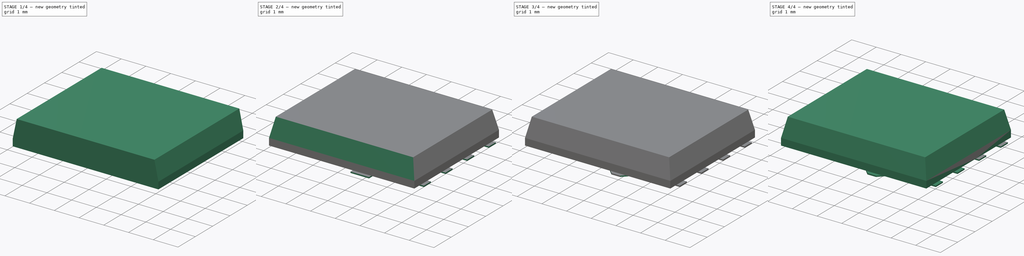
[diagram: build sequence overview — one tinted view per stage of 4, left to right]
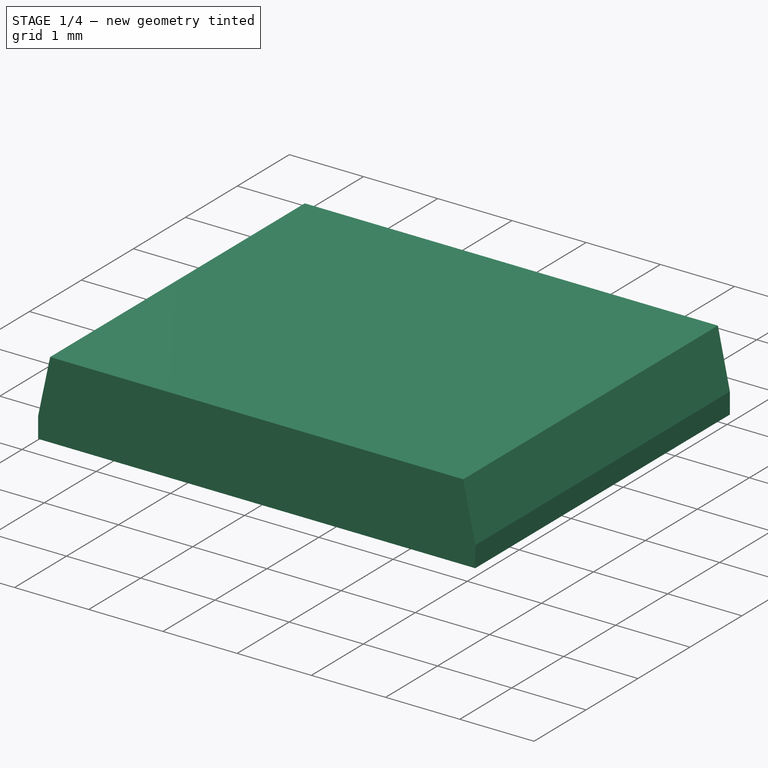
[diagram: stage 1 of 4 — iso view after this stage's code; geometry added in this stage tinted green]
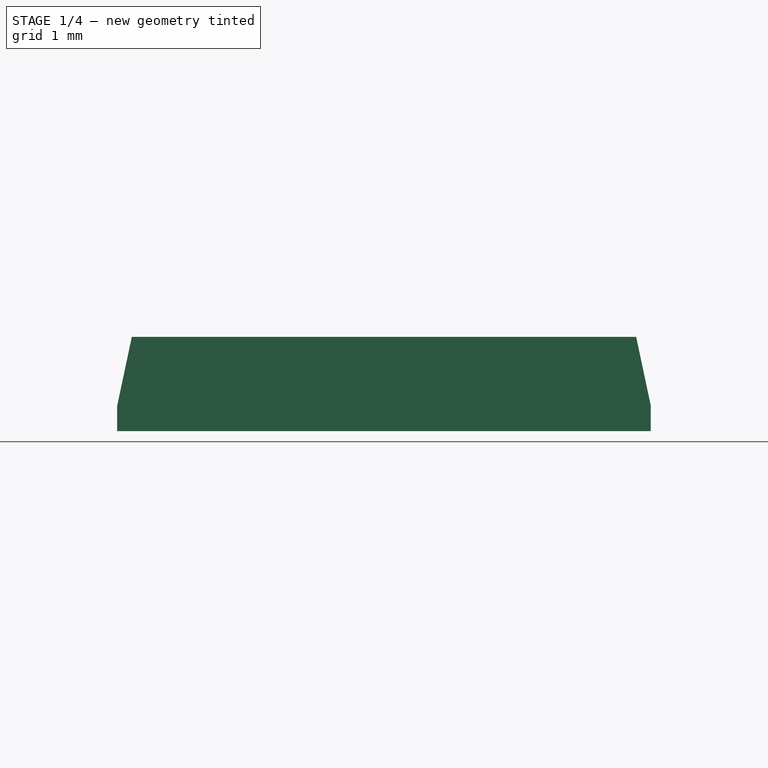
[diagram: stage 1 of 4 — front view after this stage's code; geometry added in this stage tinted green]
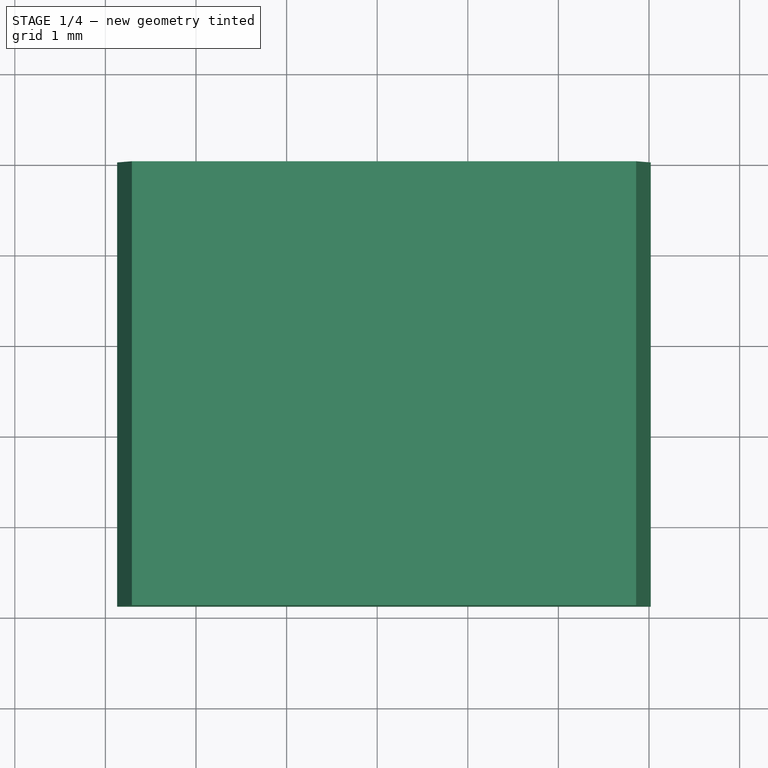
[diagram: stage 1 of 4 — top view after this stage's code; geometry added in this stage tinted green]
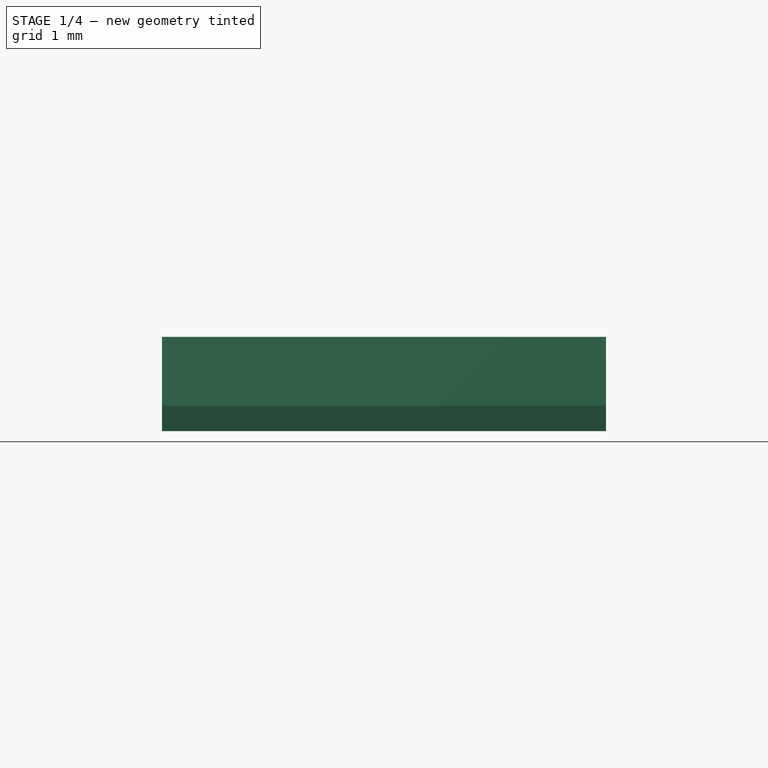
[diagram: stage 1 of 4 — right view after this stage's code; geometry added in this stage tinted green]
FCSTD DOCUMENT  (FreeCAD 0.15R4671 (Git))
Label: Vishay_PowerPAK_SO-8
License: All rights reserved
LicenseURL: http://en.wikipedia.org/wiki/All_rights_reserved
objects: Sketcher::SketchObject×4, PartDesign::Chamfer×4, PartDesign::Pad×2, PartDesign::Pocket×2, Part::MultiFuse×1
note: 17 computed .brp shape members not serialized (recipe doc carries the construction recipe); baked Part::Feature solids carry a one-line shape summary decoded from their .brp

FEATURE [Sketcher::SketchObject] Sketch001
  Placement = pos=(0,0,0.05) rot=(0,0,1;0rad)
  sketch-geometry (4):
    g0: LineSegment StartX=0.13 StartY=5.025 StartZ=0 EndX=6.02 EndY=5.025 EndZ=0
    g1: LineSegment StartX=6.02 StartY=5.025 StartZ=0 EndX=6.02 EndY=0.125 EndZ=0
    g2: LineSegment StartX=6.02 StartY=0.125 StartZ=0 EndX=0.13 EndY=0.125 EndZ=0
    g3: LineSegment StartX=0.13 StartY=0.125 StartZ=0 EndX=0.13 EndY=5.025 EndZ=0
  constraints (12):
    c: Coincident(g0,g1)
    c: Coincident(g1,g2)
    c: Coincident(g2,g3)
    c: Coincident(g3,g0)
    c: Horizontal(g0)
    c: Horizontal(g2)
    c: Vertical(g1)
    c: Vertical(g3)
    c: DistanceY(g-1,g1) = 0.125
    c: DistanceX(g-2,g2) = 0.13
    c: Distance(g0) = 5.89
    c: Distance(g3) = 4.9
FEATURE [PartDesign::Pad] Pad001  label="Body"
  Length = 1.04
  Length2 = 100
  Placement = pos=(0,0,0.05) rot=(0,0,1;0rad)
  Sketch = -> Sketch001
  Type = 0
FEATURE [Sketcher::SketchObject] Sketch002
  Placement = pos=(0,0.125,0.05) rot=(1,0,0;1.5708rad)
  Support = -> Pad001 [Face3]
  sketch-geometry (6):
    g0: LineSegment StartX=0.13 StartY=0.28 StartZ=0 EndX=0.13 EndY=1.04 EndZ=0
    g1: LineSegment StartX=0.13 StartY=1.04 StartZ=0 EndX=0.291543 EndY=1.04 EndZ=0
    g2: LineSegment StartX=0.291543 StartY=1.04 StartZ=0 EndX=0.13 EndY=0.28 EndZ=0
    g3: LineSegment StartX=5.85846 StartY=1.04 StartZ=0 EndX=6.02 EndY=1.04 EndZ=0
    g4: LineSegment StartX=6.02 StartY=1.04 StartZ=0 EndX=6.02 EndY=0.28 EndZ=0
    g5: LineSegment StartX=6.02 StartY=0.28 StartZ=0 EndX=5.85846 EndY=1.04 EndZ=0
  constraints (18):
    c: Vertical(g0)
    c: Coincident(g0,g1)
    c: Horizontal(g1)
    c: Coincident(g1,g2)
    c: Coincident(g2,g0)
    c: Distance(g0) = 0.76
    c: Angle(g2,g0) = 0.20944
    c: DistanceY(g-1,g0) = 0.28
    c: DistanceX(g-2,g0) = 0.13
    c: Horizontal(g3)
    c: Coincident(g3,g4)
    c: Vertical(g4)
    c: Coincident(g4,g5)
    c: Coincident(g5,g3)
    c: Equal(g4,g0)
    c: Angle(g4,g5) = 0.20944
    c: DistanceY(g-1,g4) = 0.28
    c: Distance(g3,g0) = 5.89
FEATURE [PartDesign::Pocket] Pocket
  Length = 6
  Placement = pos=(0,0,0.05) rot=(0,0,1;0rad)
  Sketch = -> Sketch002
  Type = 0
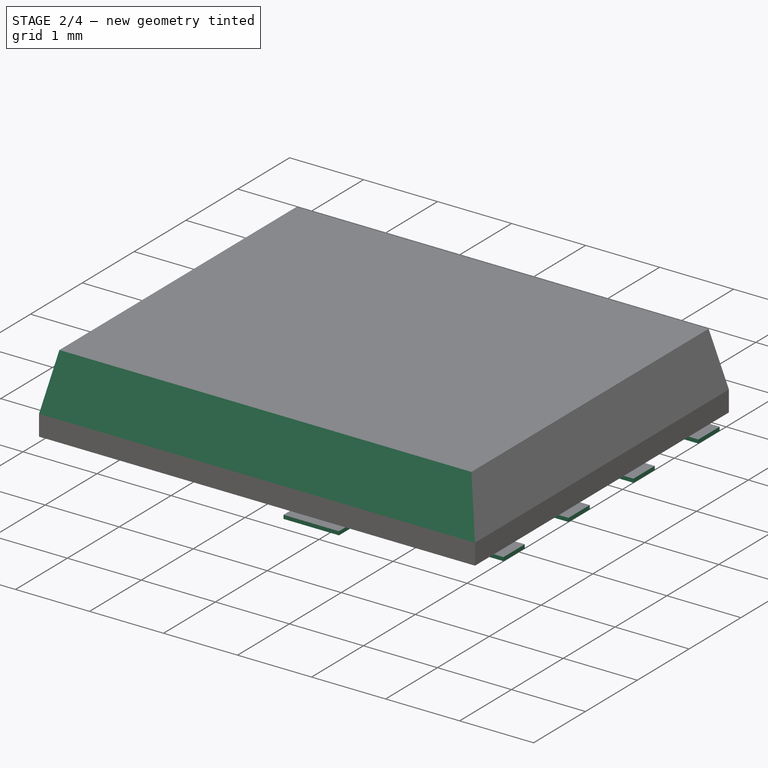
[diagram: stage 2 of 4 — iso view after this stage's code; geometry added in this stage tinted green]
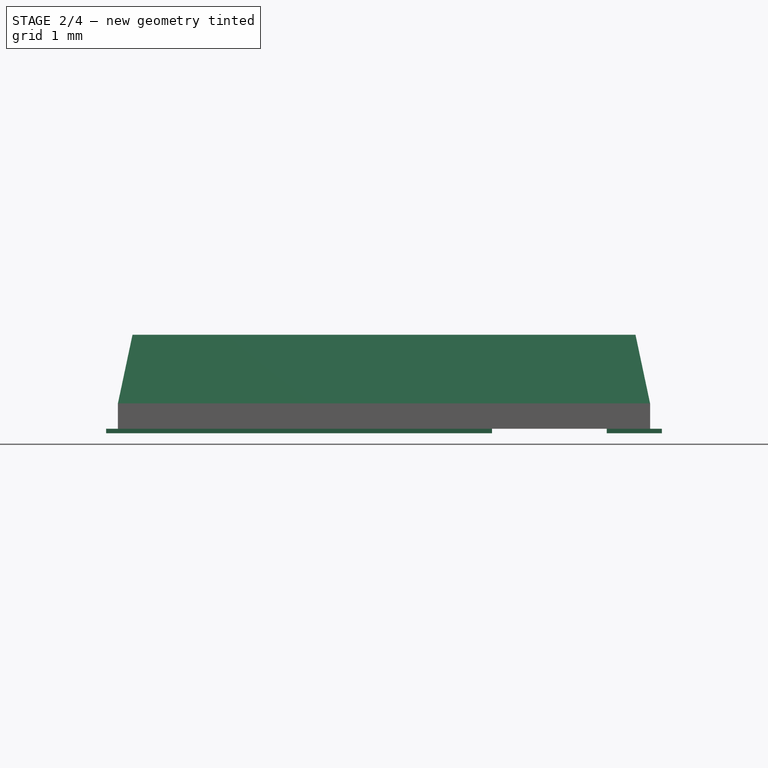
[diagram: stage 2 of 4 — front view after this stage's code; geometry added in this stage tinted green]
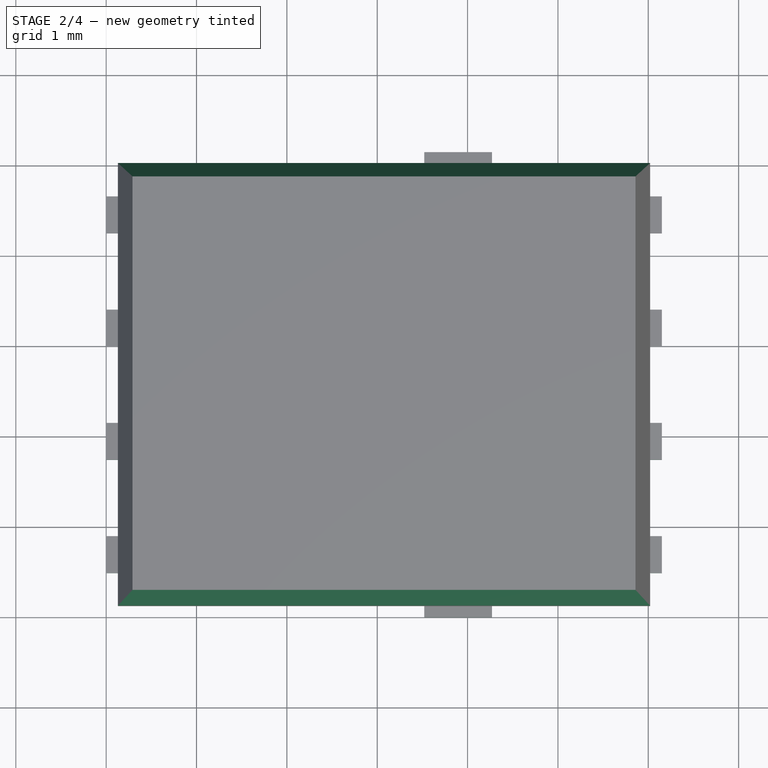
[diagram: stage 2 of 4 — top view after this stage's code; geometry added in this stage tinted green]
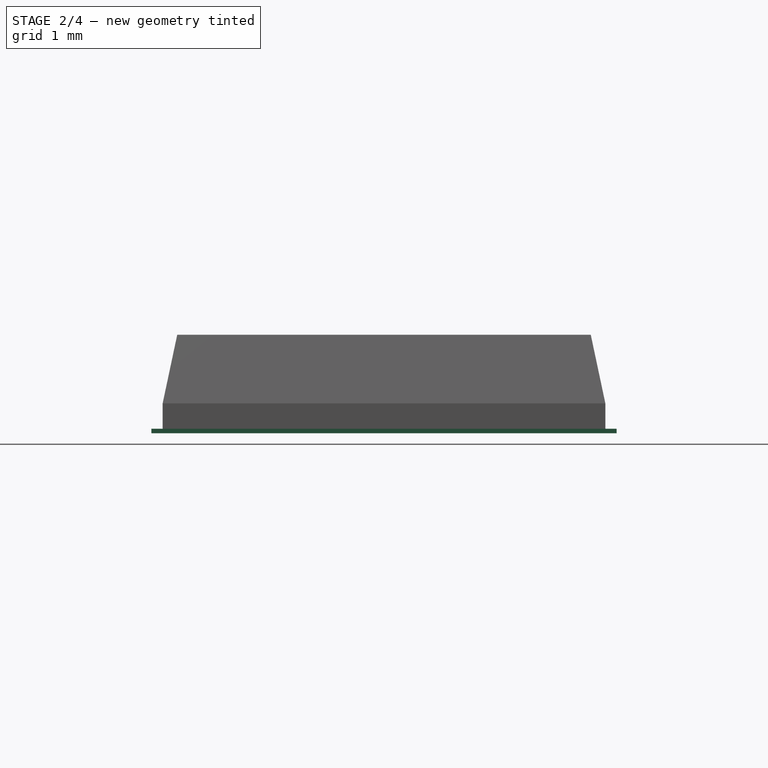
[diagram: stage 2 of 4 — right view after this stage's code; geometry added in this stage tinted green]
FEATURE [Sketcher::SketchObject] Sketch
  sketch-geometry (40):
    g0: LineSegment StartX=3.52 StartY=0 StartZ=0 EndX=3.52 EndY=0.49 EndZ=0
    g1: LineSegment StartX=3.52 StartY=0.49 StartZ=0 EndX=0 EndY=0.49 EndZ=0
    g2: LineSegment StartX=0 StartY=0.49 StartZ=0 EndX=0 EndY=0.9 EndZ=0
    g3: LineSegment StartX=0 StartY=0.9 StartZ=0 EndX=0.61 EndY=0.9 EndZ=0
    g4: LineSegment StartX=0.61 StartY=0.9 StartZ=0 EndX=0.61 EndY=1.74333 EndZ=0
    g5: LineSegment StartX=0.61 StartY=1.74333 StartZ=0 EndX=0 EndY=1.74333 EndZ=0
    g6: LineSegment StartX=0 StartY=1.74333 StartZ=0 EndX=0 EndY=2.15333 EndZ=0
    g7: LineSegment StartX=0 StartY=2.15333 StartZ=0 EndX=0.61 EndY=2.15333 EndZ=0
    g8: LineSegment StartX=0.61 StartY=2.15333 StartZ=0 EndX=0.61 EndY=2.99667 EndZ=0
    g9: LineSegment StartX=0.61 StartY=2.99667 StartZ=0 EndX=0 EndY=2.99667 EndZ=0
    g10: LineSegment StartX=0 StartY=2.99667 StartZ=0 EndX=0 EndY=3.40667 EndZ=0
    g11: LineSegment StartX=0 StartY=3.40667 StartZ=0 EndX=0.61 EndY=3.40667 EndZ=0
    g12: LineSegment StartX=0.61 StartY=3.40667 StartZ=0 EndX=0.61 EndY=4.25 EndZ=0
    g13: LineSegment StartX=0.61 StartY=4.25 StartZ=0 EndX=0 EndY=4.25 EndZ=0
    g14: LineSegment StartX=0 StartY=4.25 StartZ=0 EndX=0 EndY=4.66 EndZ=0
    g15: LineSegment StartX=0 StartY=4.66 StartZ=0 EndX=3.52 EndY=4.66 EndZ=0
    g16: LineSegment StartX=3.52 StartY=4.66 StartZ=0 EndX=3.52 EndY=5.15 EndZ=0
    g17: LineSegment StartX=3.52 StartY=5.15 StartZ=0 EndX=4.27 EndY=5.15 EndZ=0
    g18: LineSegment StartX=4.27 StartY=5.15 StartZ=0 EndX=4.27 EndY=0 EndZ=0
    g19: LineSegment StartX=4.27 StartY=0 StartZ=0 EndX=3.52 EndY=0 EndZ=0
    g20: LineSegment StartX=5.54 StartY=4.66 StartZ=0 EndX=6.15 EndY=4.66 EndZ=0
    g21: LineSegment StartX=6.15 StartY=4.66 StartZ=0 EndX=6.15 EndY=4.25 EndZ=0
    g22: LineSegment StartX=6.15 StartY=4.25 StartZ=0 EndX=5.54 EndY=4.25 EndZ=0
    g23: LineSegment StartX=5.54 StartY=4.25 StartZ=0 EndX=5.54 EndY=4.66 EndZ=0
    g24: LineSegment StartX=5.54 StartY=3.40667 StartZ=0 EndX=6.15 EndY=3.40667 EndZ=0
    g25: LineSegment StartX=6.15 StartY=3.40667 StartZ=0 EndX=6.15 EndY=2.99667 EndZ=0
    g26: LineSegment StartX=6.15 StartY=2.99667 StartZ=0 EndX=5.54 EndY=2.99667 EndZ=0
    g27: LineSegment StartX=5.54 StartY=2.99667 StartZ=0 EndX=5.54 EndY=3.40667 EndZ=0
    g28: LineSegment StartX=5.54 StartY=2.15333 StartZ=0 EndX=6.15 EndY=2.15333 EndZ=0
    g29: LineSegment StartX=6.15 StartY=2.15333 StartZ=0 EndX=6.15 EndY=1.74333 EndZ=0
    g30: LineSegment StartX=6.15 StartY=1.74333 StartZ=0 EndX=5.54 EndY=1.74333 EndZ=0
    g31: LineSegment StartX=5.54 StartY=1.74333 StartZ=0 EndX=5.54 EndY=2.15333 EndZ=0
    g32: LineSegment StartX=5.54 StartY=0.9 StartZ=0 EndX=6.15 EndY=0.9 EndZ=0
    g33: LineSegment StartX=6.15 StartY=0.9 StartZ=0 EndX=6.15 EndY=0.49 EndZ=0
    g34: LineSegment StartX=6.15 StartY=0.49 StartZ=0 EndX=5.54 EndY=0.49 EndZ=0
    g35: LineSegment StartX=5.54 StartY=0.49 StartZ=0 EndX=5.54 EndY=0.9 EndZ=0
    g36: LineSegment [constr] StartX=6.15 StartY=1.74333 StartZ=0 EndX=6.15 EndY=0.9 EndZ=0
    g37: LineSegment [constr] StartX=6.15 StartY=2.99667 StartZ=0 EndX=6.15 EndY=2.15333 EndZ=0
    g38: LineSegment [constr] StartX=6.15 StartY=4.25 StartZ=0 EndX=6.15 EndY=3.40667 EndZ=0
    g39: LineSegment [constr] StartX=6.15 StartY=0.49 StartZ=0 EndX=6.15 EndY=0 EndZ=0
  constraints (121):
    c: PointOnObject(g0,g-1)
    c: Vertical(g0)
    c: Coincident(g0,g1)
    c: PointOnObject(g1,g-2)
    c: Horizontal(g1)
    c: Coincident(g1,g2)
    c: Coincident(g2,g3)
    c: Horizontal(g3)
    c: Coincident(g3,g4)
    c: Vertical(g4)
    c: Coincident(g4,g5)
    c: PointOnObject(g5,g-2)
    c: Horizontal(g5)
    c: Coincident(g5,g6)
    c: Coincident(g6,g7)
    c: Horizontal(g7)
    c: Coincident(g7,g8)
    c: Vertical(g8)
    c: Coincident(g8,g9)
    c: PointOnObject(g9,g-2)
    c: Horizontal(g9)
    c: Coincident(g9,g10)
    c: PointOnObject(g10,g-2)
    c: Coincident(g10,g11)
    c: Horizontal(g11)
    c: Coincident(g11,g12)
    c: Vertical(g12)
    c: Coincident(g12,g13)
    c: PointOnObject(g13,g-2)
    c: Horizontal(g13)
    c: Coincident(g13,g14)
    c: PointOnObject(g14,g-2)
    c: Coincident(g14,g15)
    c: Horizontal(g15)
    c: Coincident(g15,g16)
    c: Vertical(g16)
    c: Coincident(g16,g17)
    c: Horizontal(g17)
    c: Coincident(g17,g18)
    c: PointOnObject(g18,g-1)
    c: Coincident(g18,g19)
    c: Coincident(g19,g0)
    c: Equal(g14,g10)
    c: Equal(g10,g6)
    c: Equal(g6,g2)
    c: Distance(g2) = 0.41
    c: Equal(g13,g11)
    c: Equal(g11,g9)
    c: Equal(g9,g7)
    c: Equal(g7,g5)
    c: Equal(g5,g3)
    c: Distance(g13) = 0.61
    c: Equal(g12,g8)
    c: Equal(g8,g4)
    c: Equal(g17,g19)
    c: Distance(g19) = 0.75
    c: Equal(g0,g16)
    c: Distance(g0) = 0.49
    c: Equal(g15,g1)
    c: Distance(g15) = 3.52
    c: Coincident(g20,g21)
    c: Coincident(g21,g22)
    c: Coincident(g22,g23)
    c: Coincident(g23,g20)
    c: Horizontal(g20)
    c: Horizontal(g22)
    c: Vertical(g21)
    c: Vertical(g23)
    c: Coincident(g24,g25)
    c: Coincident(g25,g26)
    c: Coincident(g26,g27)
    c: Coincident(g27,g24)
    c: Horizontal(g24)
    c: Horizontal(g26)
    c: Vertical(g25)
    c: Vertical(g27)
    c: Coincident(g28,g29)
    c: Coincident(g29,g30)
    c: Coincident(g30,g31)
    c: Coincident(g31,g28)
    c: Horizontal(g28)
    c: Horizontal(g30)
    c: Vertical(g29)
    c: Vertical(g31)
    c: Coincident(g32,g33)
    c: Coincident(g33,g34)
    c: Coincident(g34,g35)
    c: Coincident(g35,g32)
    c: Horizontal(g32)
    c: Horizontal(g34)
    c: Vertical(g33)
    c: Vertical(g35)
    c: Distance(g33) = 0.41
    c: Distance(g20,g18) = 1.27
    c: Distance(g26,g18) = 1.27
    c: Distance(g30,g18) = 1.27
    c: Distance(g34,g18) = 1.27
    c: Coincident(g36,g29)
    c: Coincident(g36,g32)
    c: Vertical(g36)
    c: Equal(g36,g4)
    c: Coincident(g37,g25)
    c: Coincident(g37,g28)
    c: Vertical(g37)
    c: Equal(g37,g8)
    c: Coincident(g38,g21)
    c: Coincident(g38,g24)
    c: Vertical(g38)
    c: Equal(g38,g8)
    c: Equal(g33,g29)
    c: Equal(g29,g25)
    c: Equal(g25,g21)
    c: Equal(g34,g30)
    c: Equal(g30,g26)
    c: Equal(g26,g22)
    c: Distance(g20) = 0.61
    c: Distance(g18) = 5.15
    c: Coincident(g39,g33)
    c: PointOnObject(g39,g-1)
    c: Vertical(g39)
    c: Equal(g39,g0)
FEATURE [PartDesign::Pad] Pad
  Length = 0.05
  Length2 = 100
  Sketch = -> Sketch
  Type = 0
FEATURE [Sketcher::SketchObject] Sketch003
  Placement = pos=(6.02,0,0.05) rot=(0.57735,0.57735,0.57735;2.0944rad)
  Support = -> Pocket [Face3]
  sketch-geometry (6):
    g0: LineSegment StartX=0.125 StartY=0.28 StartZ=0 EndX=0.125 EndY=1.04 EndZ=0
    g1: LineSegment StartX=0.125 StartY=1.04 StartZ=0 EndX=0.286543 EndY=1.04 EndZ=0
    g2: LineSegment StartX=0.286543 StartY=1.04 StartZ=0 EndX=0.125 EndY=0.28 EndZ=0
    g3: LineSegment StartX=4.86346 StartY=1.04 StartZ=0 EndX=5.025 EndY=1.04 EndZ=0
    g4: LineSegment StartX=5.025 StartY=1.04 StartZ=0 EndX=5.025 EndY=0.28 EndZ=0
    g5: LineSegment StartX=5.025 StartY=0.28 StartZ=0 EndX=4.86346 EndY=1.04 EndZ=0
  constraints (18):
    c: Vertical(g0)
    c: Coincident(g0,g1)
    c: Horizontal(g1)
    c: Coincident(g1,g2)
    c: Coincident(g2,g0)
    c: Distance(g0) = 0.76
    c: Angle(g2,g0) = 0.20944
    c: DistanceY(g-1,g0) = 0.28
    c: DistanceX(g-2,g0) = 0.125
    c: Horizontal(g3)
    c: Coincident(g3,g4)
    c: Vertical(g4)
    c: Coincident(g4,g5)
    c: Coincident(g5,g3)
    c: Angle(g4,g5) = 0.20944
    c: Equal(g4,g0)
    c: DistanceY(g-1,g4) = 0.28
    c: Distance(g3,g0) = 4.9
FEATURE [PartDesign::Pocket] Pocket001
  Length = 6
  Placement = pos=(0,0,0.05) rot=(0,0,1;0rad)
  Sketch = -> Sketch003
  Type = 0
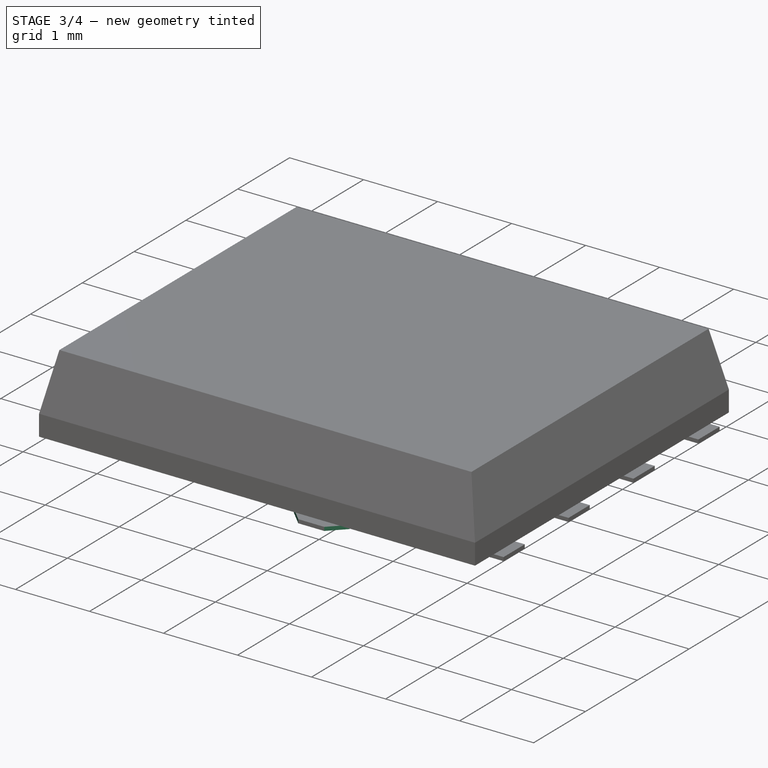
[diagram: stage 3 of 4 — iso view after this stage's code; geometry added in this stage tinted green]
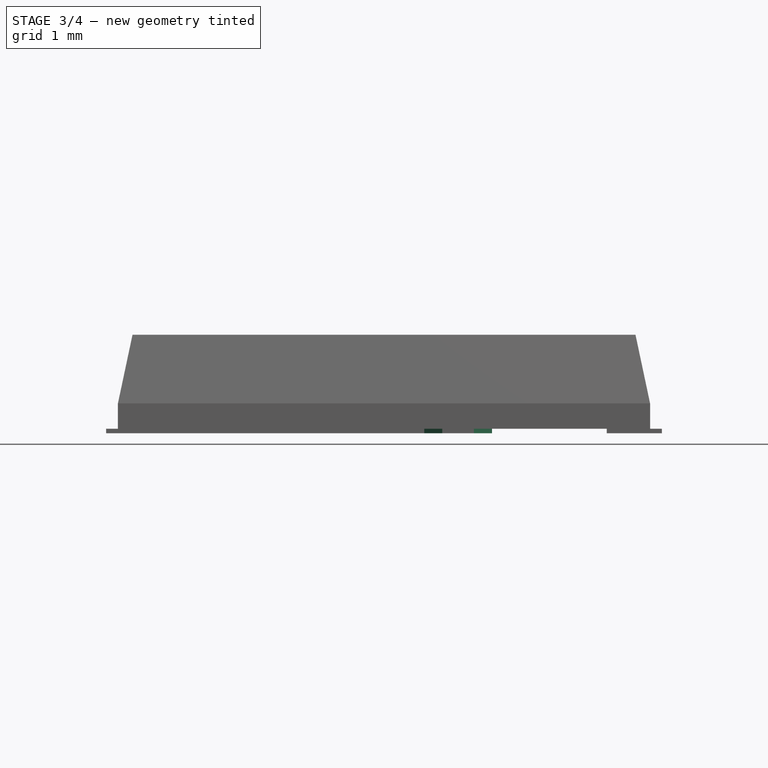
[diagram: stage 3 of 4 — front view after this stage's code; geometry added in this stage tinted green]
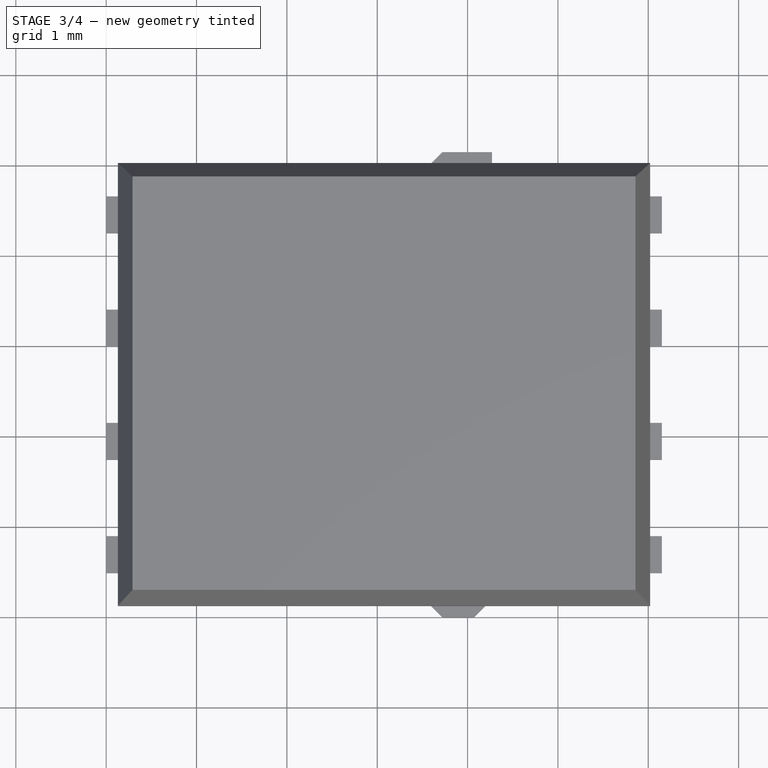
[diagram: stage 3 of 4 — top view after this stage's code; geometry added in this stage tinted green]
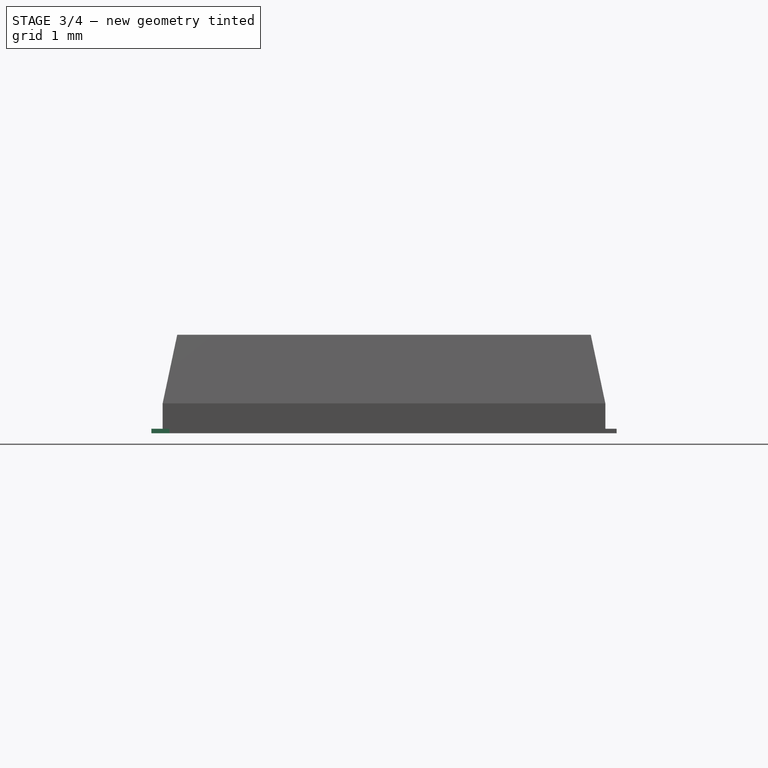
[diagram: stage 3 of 4 — right view after this stage's code; geometry added in this stage tinted green]
FEATURE [PartDesign::Chamfer] Chamfer004
  Base = -> Pad [Edge56]
  Size = 0.2
FEATURE [PartDesign::Chamfer] Chamfer005
  Base = -> Chamfer004 [Edge47]
  Size = 0.2
FEATURE [PartDesign::Chamfer] Chamfer006
  Base = -> Chamfer005 [Edge36]
  Size = 0.2
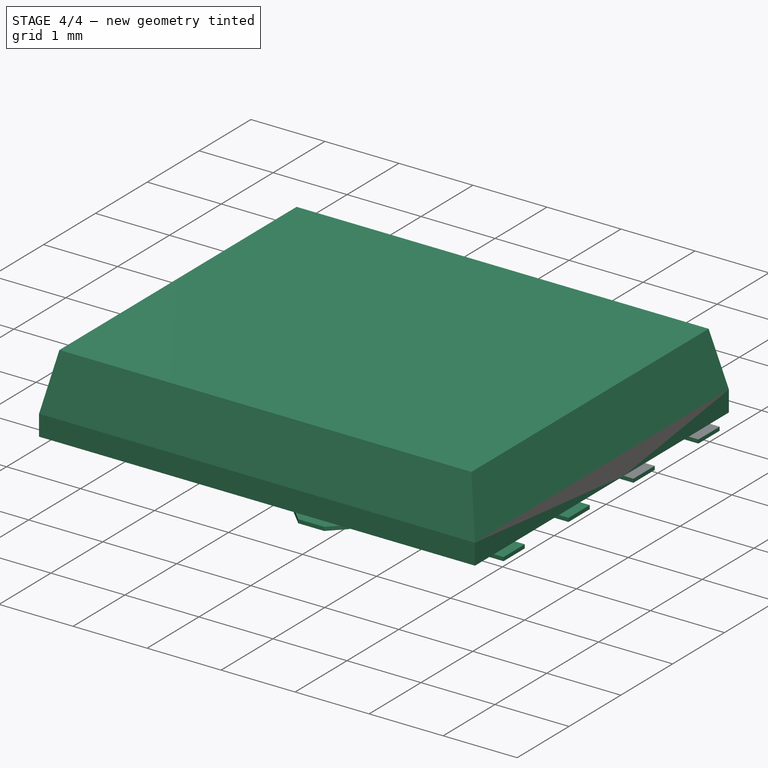
[diagram: stage 4 of 4 — iso view after this stage's code; geometry added in this stage tinted green]
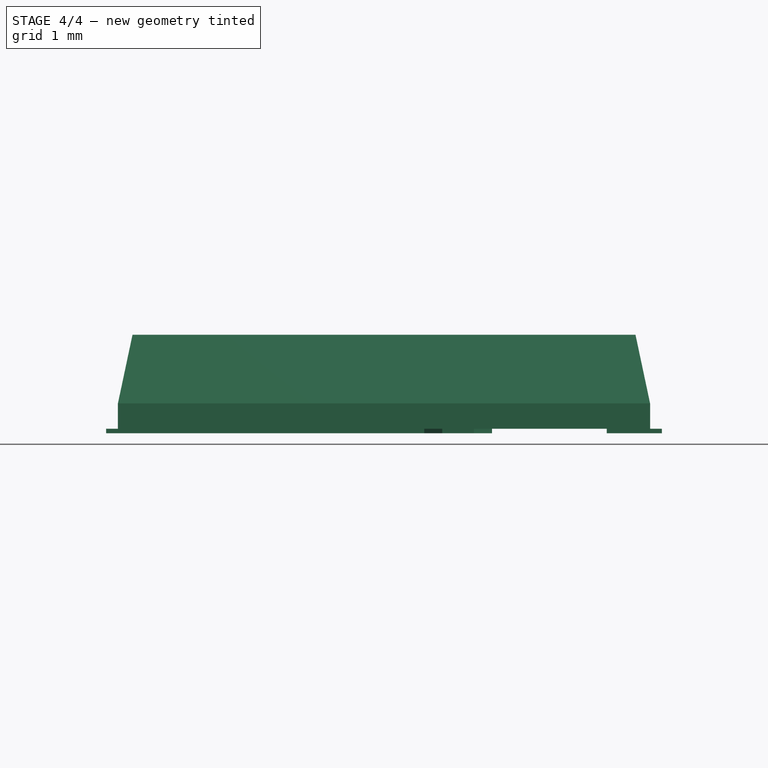
[diagram: stage 4 of 4 — front view after this stage's code; geometry added in this stage tinted green]
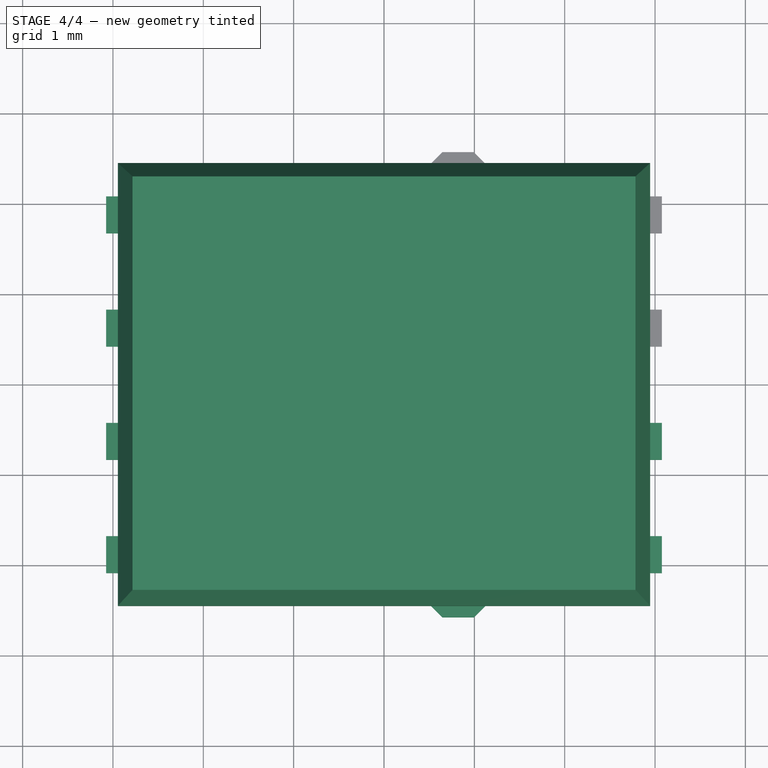
[diagram: stage 4 of 4 — top view after this stage's code; geometry added in this stage tinted green]
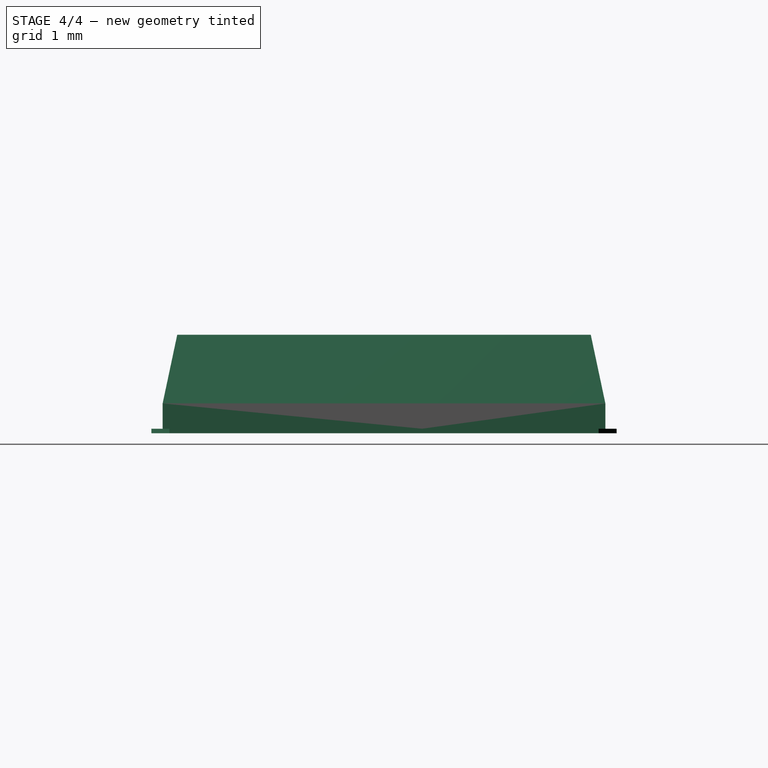
[diagram: stage 4 of 4 — right view after this stage's code; geometry added in this stage tinted green]
FEATURE [PartDesign::Chamfer] Chamfer007
  Base = -> Chamfer006 [Edge25]
  Size = 0.2
FEATURE [Part::MultiFuse] Fusion  label="Vishay_PowerPAK_SO-8"
  Placement = pos=(-3.075,-2.575,0) rot=(0,0,1;0rad)
  Shapes = -> [Chamfer007,Pocket001]
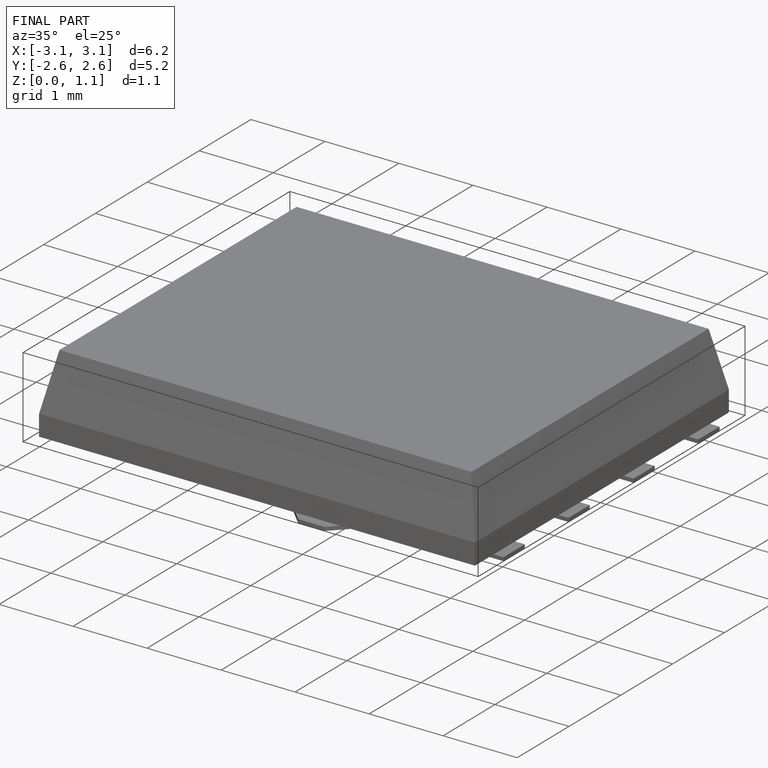
[diagram: finished part — iso view with bounding-box wireframe]
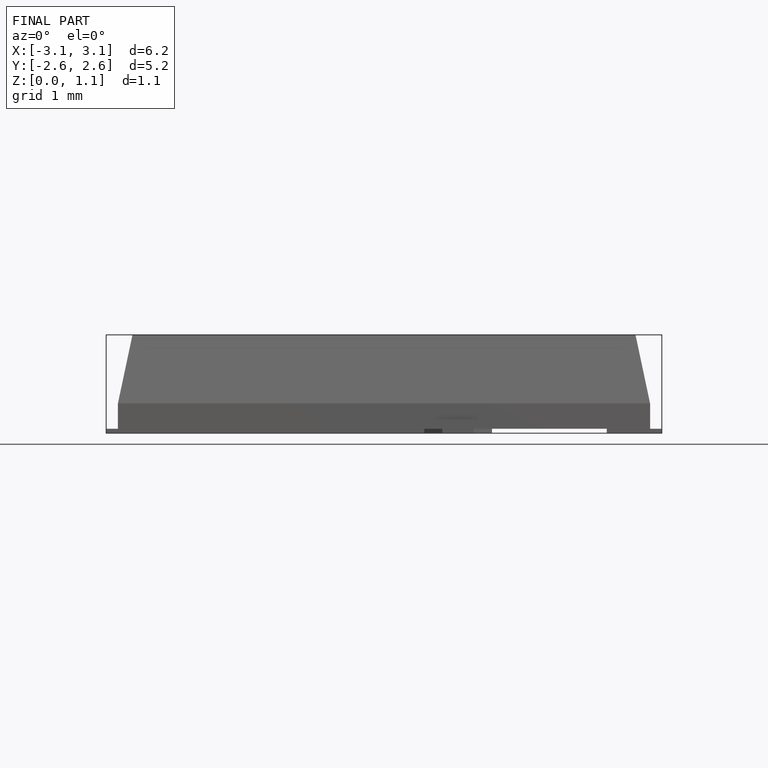
[diagram: finished part — front view with bounding-box wireframe]
